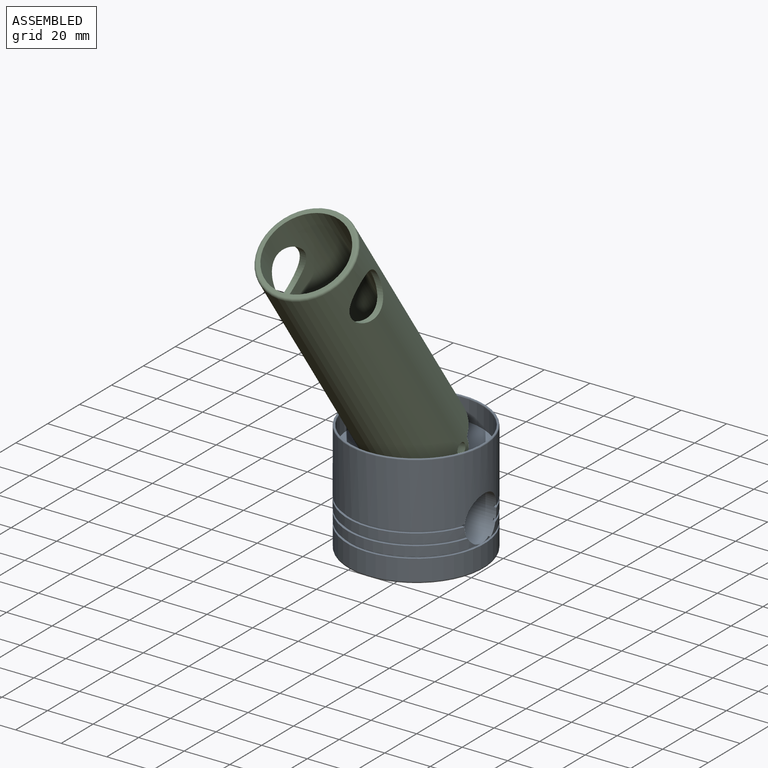
[diagram: assembled view]
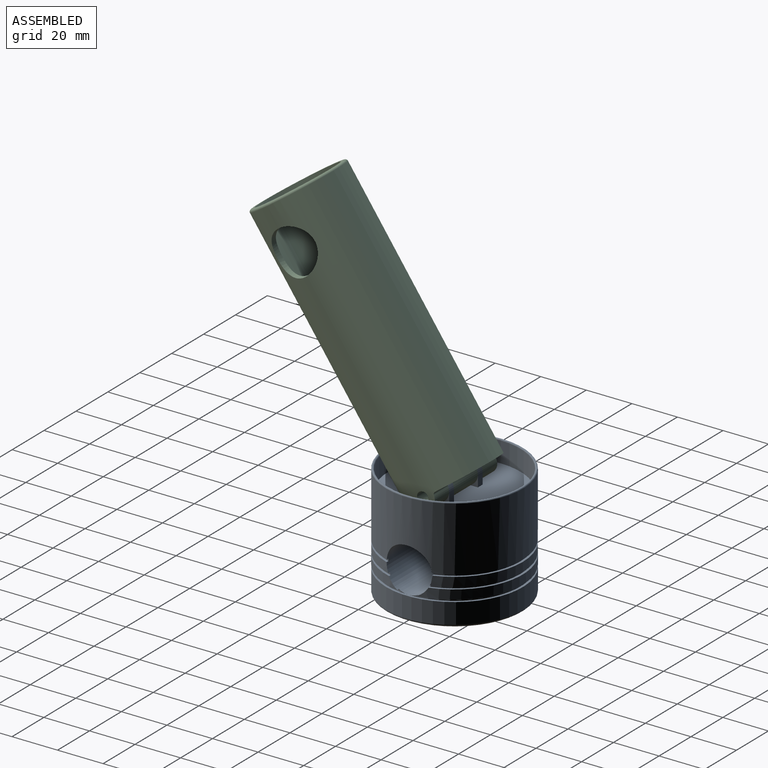
[diagram: assembled view, second angle]
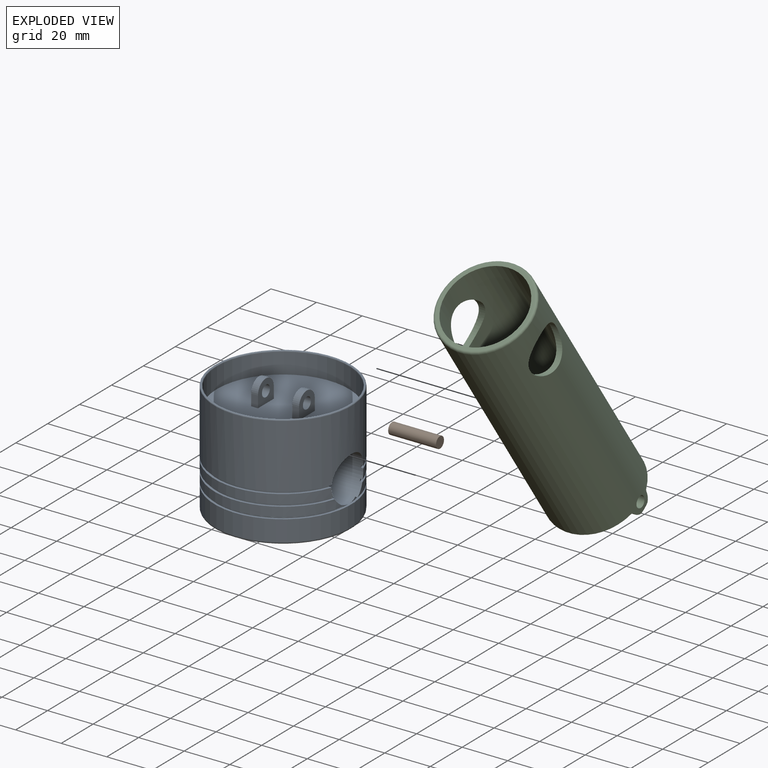
[diagram: exploded view]
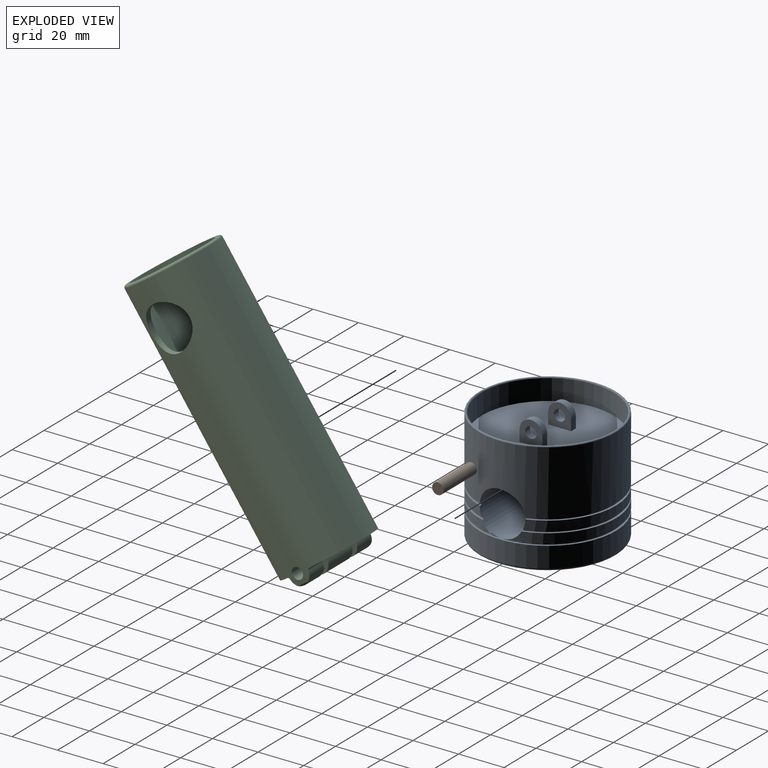
[diagram: exploded view, second angle]
ASSEMBLY  parts=3 mates=2
PART A: 41 faces, bbox 64.9x64.9x50 mm
  f0: cylinder r=29mm len=58mm, axis (0,0,-1), area 85.2mm2, adj f1,f12,f40
  f1: plane 59.36x25.65mm, normal (0,0,-1), area 83.9mm2, adj f0,f15,f40
  f2: cylinder r=30mm len=59.36mm, axis (0,0,-1), area 320.8mm2, adj f14,f16,f40
  f3: plane 57.45x21.34mm, normal (0,0,1), area 75.1mm2, adj f15,f17,f40
  f4: cylinder r=29mm len=55.35mm, axis (0,0,-1), area 73mm2, adj f16,f18,f40
  f5: plane 57.13x20.84mm, normal (0,0,-1), area 74mm2, adj f17,f19,f40
  f6: cylinder r=30mm len=57.13mm, axis (0,0,-1), area 297.7mm2, adj f18,f20,f40
  f7: plane 56.57x20.01mm, normal (0,0,1), area 72.3mm2, adj f19,f21,f40
  f8: cylinder r=29mm len=54.48mm, axis (0,0,-1), area 70.7mm2, adj f20,f22,f40
  f9: plane 56.61x20.06mm, normal (0,0,-1), area 72.4mm2, adj f21,f23,f40
  f10: plane 58x58mm, normal (0,0,-1), area 2642.1mm2, adj f24
  f11: cylinder r=30mm len=60mm, axis (0,0,-1), area 1696.5mm2, adj f12,f24
  f12: plane 60x60mm, normal (0,0,1), area 185.4mm2, adj f0,f11,f13
  f13: cylinder r=29mm len=58mm, axis (0,0,-1), area 85.2mm2, adj f12,f14,f40
  f14: plane 59.36x25.64mm, normal (0,0,-1), area 83.9mm2, adj f2,f13,f40
  f15: cylinder r=30mm len=59.36mm, axis (0,0,-1), area 320.9mm2, adj f1,f3,f40
  f16: plane 57.44x21.33mm, normal (0,0,1), area 75.1mm2, adj f2,f4,f40
  f17: cylinder r=29mm len=55.36mm, axis (0,0,-1), area 73mm2, adj f3,f5,f40
  f18: plane 57.13x20.83mm, normal (0,0,-1), area 74mm2, adj f4,f6,f40
  f19: cylinder r=30mm len=57.13mm, axis (0,0,-1), area 297.8mm2, adj f5,f7,f40
  f20: plane 56.57x20mm, normal (0,0,1), area 72.3mm2, adj f6,f8,f40
  f21: cylinder r=29mm len=54.48mm, axis (0,0,-1), area 70.8mm2, adj f7,f9,f40
  f22: plane 56.6x20.05mm, normal (0,0,-1), area 72.4mm2, adj f8,f23,f40
  f23: cylinder r=30mm len=60mm, axis (0,0,-1), area 4999.8mm2, adj f9,f22,f39,f40
  f24: torus R=29mm, axis (0,0,-1), area 292.5mm2, adj f10,f11
  f25: cylinder r=29mm len=58mm, axis (0,0,-1), area 1639.9mm2, adj f26,f39
  f26: plane 58x58mm, normal (0,0,1), area 2582.1mm2, adj f25,f29,f30,f31,f32,f35,f36,f37
  f27: cylinder r=2.5mm len=5mm, axis (1,0,0), area 47.1mm2, adj f30,f32
  f28: cylinder r=5mm len=10mm, axis (1,0,0), area 47.1mm2, adj f29,f30,f31,f32
  f29: plane 5x3mm, normal (0,-1,0), area 15mm2, adj f26,f28,f30,f32
  f30: plane 10x10mm, normal (1,0,0), area 69.6mm2, adj f26,f27,f28,f29,f31
  f31: plane 5x3mm, normal (0,1,0), area 15mm2, adj f26,f28,f30,f32
  f32: plane 10x10mm, normal (-1,0,0), area 69.6mm2, adj f26,f27,f28,f29,f31
  f33: cylinder r=5mm len=10mm, axis (-1,0,0), area 47.1mm2, adj f35,f36,f37,f38
  f34: cylinder r=2.5mm len=5mm, axis (1,0,0), area 47.1mm2, adj f35,f37
  f35: plane 10x10mm, normal (-1,0,0), area 69.6mm2, adj f26,f33,f34,f36,f38
  f36: plane 5x3mm, normal (0,-1,0), area 15mm2, adj f26,f33,f35,f37
  f37: plane 10x10mm, normal (1,0,0), area 69.6mm2, adj f26,f33,f34,f36,f38
  f38: plane 5x3mm, normal (0,1,0), area 15mm2, adj f26,f33,f35,f37
  f39: torus R=29.5mm, axis (0,0,-1), area 291.2mm2, adj f23,f25
  f40: cylinder r=10mm len=60mm, axis (1,0,0), area 3635.6mm2, adj f0,f1,f2,f3,f4,f5,f6,f7
PART B: 3 faces, bbox 21x5x5 mm
  f0: cylinder r=2.5mm len=21mm, axis (-1,0,0), area 329.9mm2, adj f1,f2
  f1: plane 5x5mm, normal (1,0,0), area 19.6mm2, adj f0
  f2: plane 5x5mm, normal (-1,0,0), area 19.6mm2, adj f0
PART C: 44 faces, bbox 43.3x43.3x125 mm
  f0: torus R=19mm, axis (0,0,1), area 5.1mm2, adj f5,f16
  f1: plane 11.83x10mm, normal (1,0,0), area 59.2mm2, adj f7,f9,f13,f14,f17,f19,f21
  f2: plane 11.83x10mm, normal (-1,0,0), area 59.2mm2, adj f7,f10,f13,f16,f17,f22,f23
  f3: plane 11.83x10mm, normal (-1,0,0), area 59.2mm2, adj f8,f9,f13,f14,f17,f19,f21
  f4: plane 11.83x10mm, normal (1,0,0), area 78.9mm2, adj f8,f13,f15,f17,f18,f20
  f5: cylinder r=20mm len=123mm, axis (0,0,-1), area 14356.3mm2, adj f0,f10,f11,f12,f13,f15,f16,f17
  f6: plane 38x38mm, normal (0,0,-1), area 172mm2, adj f11,f31
  f7: cylinder r=5mm len=10mm, axis (-1,0,0), area 47.1mm2, adj f1,f2,f13,f17
  f8: cylinder r=5mm len=10mm, axis (1,0,0), area 47.1mm2, adj f3,f4,f13,f17
  f9: cylinder r=2.5mm len=15mm, axis (1,0,0), area 235.6mm2, adj f1,f3
  f10: cylinder r=2.5mm len=9.5mm, axis (1,0,0), area 148mm2, adj f2,f5
  f11: torus R=19mm, axis (0,0,1), area 193.8mm2, adj f5,f6
  f12: torus R=19mm, axis (0,0,1), area 5.1mm2, adj f5,f15
  f13: plane 38.21x15mm, normal (0,0,1), area 400.7mm2, adj f1,f2,f3,f4,f5,f7,f8,f20
  f14: cylinder r=5mm len=15mm, axis (-1,0,0), area 210.5mm2, adj f1,f3,f19,f21
  f15: cylinder r=5mm len=9.86mm, axis (-1,0,0), area 127.1mm2, adj f4,f5,f12,f18,f20
  f16: cylinder r=5mm len=9.86mm, axis (-1,0,0), area 127.1mm2, adj f0,f2,f5,f22,f23
  f17: plane 38.21x15mm, normal (0,0,1), area 400.7mm2, adj f1,f2,f3,f4,f5,f7,f8,f18
  f18: cylinder r=1mm len=8.88mm, axis (-1,0,0), area 12.3mm2, adj f4,f5,f15,f17
  f19: cylinder r=1mm len=15mm, axis (-1,0,0), area 21.1mm2, adj f1,f3,f14,f17
  f20: cylinder r=1mm len=8.88mm, axis (-1,0,0), area 12.3mm2, adj f4,f5,f13,f15
  f21: cylinder r=1mm len=15mm, axis (-1,0,0), area 21.1mm2, adj f1,f3,f13,f14
  f22: cylinder r=1mm len=8.88mm, axis (-1,0,0), area 12.3mm2, adj f2,f5,f16,f17
  f23: cylinder r=1mm len=8.88mm, axis (-1,0,0), area 12.3mm2, adj f2,f5,f13,f16
  f24: cylinder r=5mm len=8.98mm, axis (1,0,0), area 47.6mm2, adj f25,f26,f28,f31
  f25: cylinder r=3.5mm len=3.91mm, axis (-1,0,0), area 5.4mm2, adj f24,f28,f31,f35
  f26: cylinder r=3.5mm len=3.91mm, axis (-1,0,0), area 5.4mm2, adj f24,f28,f31,f37
  f27: plane 14.14x5.3mm, normal (-1,0,0), area 36.5mm2, adj f32,f34,f35,f37,f39,f41
  f28: plane 14.14x5.3mm, normal (1,0,0), area 36.5mm2, adj f24,f25,f26,f32,f35,f37
  f29: plane 14.14x5.3mm, normal (1,0,0), area 36.5mm2, adj f33,f34,f35,f37,f39,f41
  f30: plane 14.14x10mm, normal (-1,0,0), area 78.6mm2, adj f33,f35,f36,f37,f38,f40
  f31: cylinder r=17.5mm len=122.5mm, axis (0,0,-1), area 12274.1mm2, adj f6,f24,f25,f26,f35,f36,f37,f38
  f32: cylinder r=7.5mm len=14.14mm, axis (-1,0,0), area 147.7mm2, adj f27,f28,f35,f37
  f33: cylinder r=7.5mm len=14.14mm, axis (1,0,0), area 147.7mm2, adj f29,f30,f35,f37
  f34: cylinder r=5mm len=10mm, axis (1,0,0), area 111.6mm2, adj f27,f29,f39,f41
  f35: plane 32.94x11.58mm, normal (0,0,-1), area 259.5mm2, adj f25,f27,f28,f29,f30,f31,f32,f33
  f36: cylinder r=2.5mm len=4.93mm, axis (-1,0,0), area 30.9mm2, adj f30,f31,f38,f40
  f37: plane 32.94x11.58mm, normal (0,0,-1), area 259.5mm2, adj f26,f27,f28,f29,f30,f31,f32,f33
  f38: cylinder r=3.5mm len=4.33mm, axis (-1,0,0), area 19.8mm2, adj f30,f31,f36,f37
  f39: cylinder r=3.5mm len=10mm, axis (-1,0,0), area 14.7mm2, adj f27,f29,f34,f37
  f40: cylinder r=3.5mm len=4.33mm, axis (-1,0,0), area 19.8mm2, adj f30,f31,f35,f36
  f41: cylinder r=3.5mm len=10mm, axis (-1,0,0), area 14.7mm2, adj f27,f29,f34,f35
  f42: cylinder r=10mm len=20mm, axis (1,0,0), area 170.5mm2, adj f5,f31
  f43: cylinder r=10mm len=20mm, axis (1,0,0), area 170.5mm2, adj f5,f31
PLACE A t=(13.28,43.52,53.79)mm fixed
PLACE B t=(13.28,43.52,98.79)mm
PLACE C rot(axis=(-1,0,0),145deg) t=(13.28,3.37,156.13)mm
MATE cylindrical C.f7 <-> B.f0  axis (1,0,0) through (13.28,43.52,98.79)mm
MATE cylindrical B.f0 <-> A.f27  axis (1,0,0) through (23.78,43.52,98.79)mm
